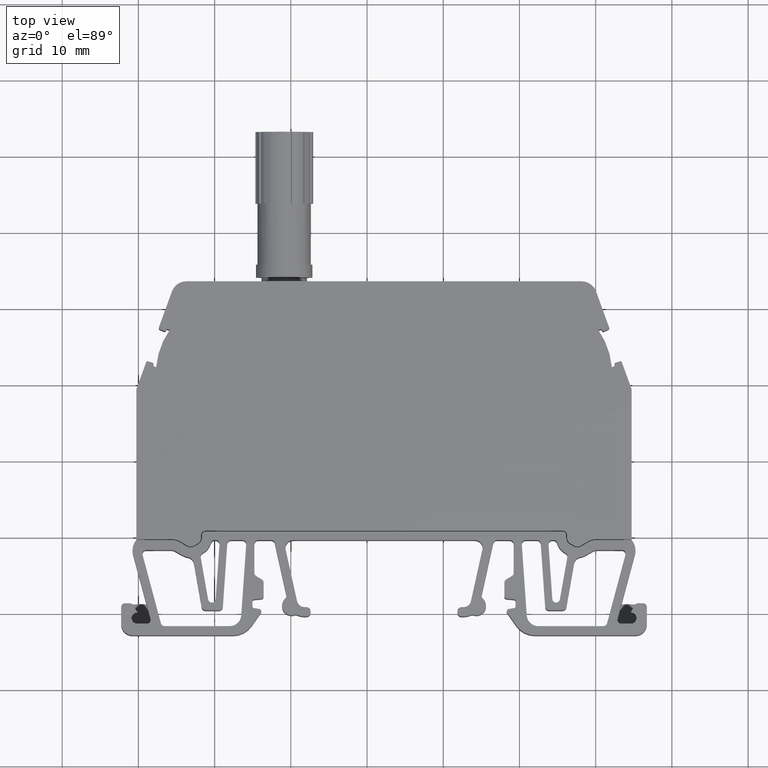
[diagram: clean part render]
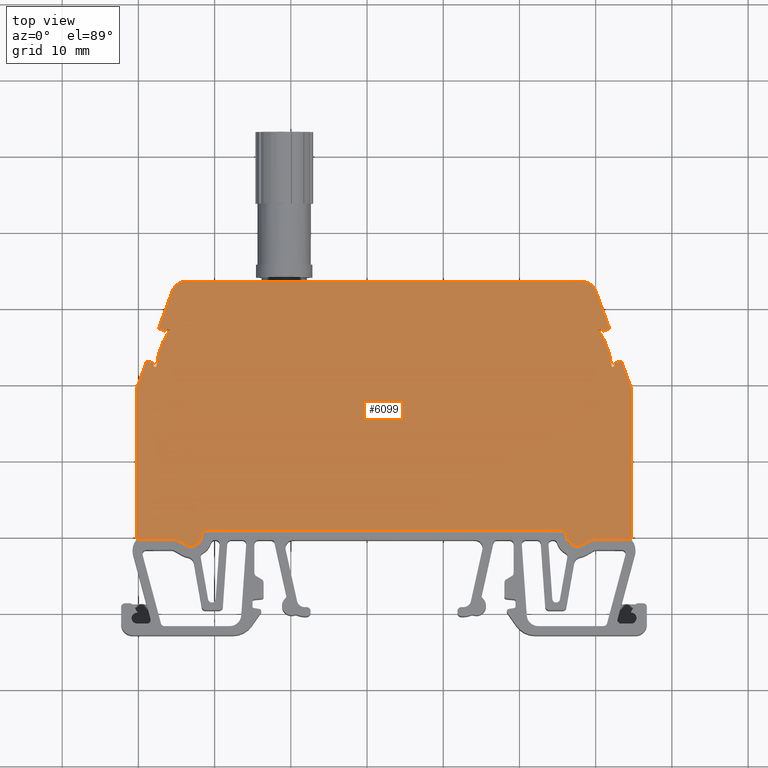
[diagram: same view with one face highlighted and labeled with its STEP entity id]
A machine part, top view. The second image highlights one B-rep face of the part: STEP entity #6099.
In plain terms, the highlighted planar face has unit normal (0, 0, 1).
Its self-contained STEP definition (entity closure, byte-faithful):
#1231 = VECTOR ( 'NONE', #11389, 1000.000000000000000 ) ;
#1234 = VECTOR ( 'NONE', #11444, 1000.000000000000100 ) ;
#1241 = CIRCLE ( 'NONE', #1242, 0.1500000000000945000 ) ;
#1242 = AXIS2_PLACEMENT_3D ( 'NONE', #11400, #11406, #11407 ) ;
#1252 = VECTOR ( 'NONE', #11384, 1000.000000000000200 ) ;
#1256 = CIRCLE ( 'NONE', #1261, 2.000000000000057300 ) ;
#1258 = VECTOR ( 'NONE', #11416, 1000.000000000000100 ) ;
#1259 = VECTOR ( 'NONE', #11447, 1000.000000000000000 ) ;
#1261 = AXIS2_PLACEMENT_3D ( 'NONE', #11434, #11443, #11435 ) ;
#1268 = VECTOR ( 'NONE', #11337, 1000.000000000000000 ) ;
#1272 = VECTOR ( 'NONE', #11403, 1000.000000000000100 ) ;
#1278 = VECTOR ( 'NONE', #11458, 1000.000000000000100 ) ;
#2169 = CIRCLE ( 'NONE', #2178, 0.1999999999999779700 ) ;
#2178 = AXIS2_PLACEMENT_3D ( 'NONE', #15309, #15326, #15314 ) ;
#2559 = CARTESIAN_POINT ( 'NONE',  ( 448.0263305940792400, 109.3124946681346800, 35.90000000000000600 ) ) ;
#2749 = VECTOR ( 'NONE', #4331, 1000.000000000000000 ) ;
#2763 = AXIS2_PLACEMENT_3D ( 'NONE', #4247, #4237, #4228 ) ;
#2784 = VECTOR ( 'NONE', #4264, 1000.000000000000000 ) ;
#2801 = VECTOR ( 'NONE', #4217, 1000.000000000000000 ) ;
#2823 = CIRCLE ( 'NONE', #2763, 2.100000000000323800 ) ;
#2836 = VECTOR ( 'NONE', #4405, 1000.000000000000000 ) ;
#2857 = VECTOR ( 'NONE', #3525, 1000.000000000000100 ) ;
#2884 = CIRCLE ( 'NONE', #2886, 0.1499999999999834800 ) ;
#2886 = AXIS2_PLACEMENT_3D ( 'NONE', #3495, #3497, #3487 ) ;
#2894 = VECTOR ( 'NONE', #19260, 1000.000000000000100 ) ;
#2899 = AXIS2_PLACEMENT_3D ( 'NONE', #10666, #10668, #10660 ) ;
#2903 = CIRCLE ( 'NONE', #2912, 2.100000000000656900 ) ;
#2912 = AXIS2_PLACEMENT_3D ( 'NONE', #19233, #19209, #19212 ) ;
#2930 = VECTOR ( 'NONE', #19914, 1000.000000000000000 ) ;
#2932 = VECTOR ( 'NONE', #19229, 1000.000000000000000 ) ;
#2935 = CIRCLE ( 'NONE', #2942, 1.499999999999945800 ) ;
#2939 = CIRCLE ( 'NONE', #2899, 0.1999999999999779700 ) ;
#2942 = AXIS2_PLACEMENT_3D ( 'NONE', #21774, #9299, #8031 ) ;
#2950 = VECTOR ( 'NONE', #19841, 1000.000000000000000 ) ;
#2974 = VECTOR ( 'NONE', #11345, 1000.000000000000100 ) ;
#2976 = AXIS2_PLACEMENT_3D ( 'NONE', #11350, #11334, #11349 ) ;
#2979 = CIRCLE ( 'NONE', #3047, 1.999999999999724200 ) ;
#2982 = CIRCLE ( 'NONE', #2976, 0.1999999999999779700 ) ;
#2985 = VECTOR ( 'NONE', #11360, 1000.000000000000000 ) ;
#2989 = CIRCLE ( 'NONE', #3035, 1.499999999999890300 ) ;
#2990 = AXIS2_PLACEMENT_3D ( 'NONE', #11310, #11316, #11322 ) ;
#2992 = AXIS2_PLACEMENT_3D ( 'NONE', #11369, #11344, #11372 ) ;
#2999 = CIRCLE ( 'NONE', #2990, 0.1999999999997559300 ) ;
#3005 = VECTOR ( 'NONE', #11295, 999.9999999999998900 ) ;
#3007 = VECTOR ( 'NONE', #11307, 1000.000000000000100 ) ;
#3014 = VECTOR ( 'NONE', #11312, 1000.000000000000000 ) ;
#3023 = CIRCLE ( 'NONE', #3044, 0.1499999999997614400 ) ;
#3027 = VECTOR ( 'NONE', #11285, 1000.000000000000100 ) ;
#3030 = VECTOR ( 'NONE', #11266, 1000.000000000000000 ) ;
#3035 = AXIS2_PLACEMENT_3D ( 'NONE', #11269, #11275, #11260 ) ;
#3037 = VECTOR ( 'NONE', #11248, 1000.000000000000100 ) ;
#3039 = CIRCLE ( 'NONE', #3041, 10.00000000000045300 ) ;
#3041 = AXIS2_PLACEMENT_3D ( 'NONE', #11308, #11296, #11292 ) ;
#3044 = AXIS2_PLACEMENT_3D ( 'NONE', #11327, #11290, #11299 ) ;
#3047 = AXIS2_PLACEMENT_3D ( 'NONE', #11361, #11340, #11364 ) ;
#3048 = CIRCLE ( 'NONE', #3065, 0.1499999999997614400 ) ;
#3052 = VECTOR ( 'NONE', #11351, 1000.000000000000100 ) ;
#3056 = VECTOR ( 'NONE', #11357, 1000.000000000000200 ) ;
#3058 = AXIS2_PLACEMENT_3D ( 'NONE', #11333, #11363, #11371 ) ;
#3060 = CIRCLE ( 'NONE', #2992, 0.2000000000001445100 ) ;
#3061 = VECTOR ( 'NONE', #11335, 1000.000000000000200 ) ;
#3065 = AXIS2_PLACEMENT_3D ( 'NONE', #11264, #11277, #11255 ) ;
#3067 = CIRCLE ( 'NONE', #3058, 10.00000000000000900 ) ;
#3276 = CARTESIAN_POINT ( 'NONE',  ( 447.9114824993305900, 109.1976465733860000, 35.89999999999999900 ) ) ;
#3487 = DIRECTION ( 'NONE',  ( 1.000000000000000000, -1.850371707708798000E-013, 0.0000000000000000000 ) ) ;
#3491 = CARTESIAN_POINT ( 'NONE',  ( 448.2439710783148700, 110.3477804724449700, 35.90000000000000600 ) ) ;
#3493 = CARTESIAN_POINT ( 'NONE',  ( 447.7754475470129600, 109.1191067570462300, 35.89999999999999900 ) ) ;
#3495 = CARTESIAN_POINT ( 'NONE',  ( 442.1032132779684500, 132.5112260477452000, 35.89999999999999900 ) ) ;
#3497 = DIRECTION ( 'NONE',  ( -0.0000000000000000000, -0.0000000000000000000, -1.000000000000000000 ) ) ;
#3502 = CARTESIAN_POINT ( 'NONE',  ( 448.2255151545261900, 110.2368191538287600, 35.89999999999999900 ) ) ;
#3504 = CARTESIAN_POINT ( 'NONE',  ( 448.2308317375813000, 110.2930991717582000, 35.89999999999999900 ) ) ;
#3508 = CARTESIAN_POINT ( 'NONE',  ( 448.2544690293987600, 110.3838794024043800, 35.89999999999999900 ) ) ;
#3516 = LINE ( 'NONE', #3517, #2857 ) ;
#3517 = CARTESIAN_POINT ( 'NONE',  ( 461.3182661428159600, 87.64050141406870900, 35.90000000000002700 ) ) ;
#3525 = DIRECTION ( 'NONE',  ( -0.8660242921353220600, -0.5000019254278069700, -0.0000000000000000000 ) ) ;
#3529 = CARTESIAN_POINT ( 'NONE',  ( 448.2254475470130000, 110.1985886008790100, 35.89999999999999900 ) ) ;
#3907 = LINE ( 'NONE', #4135, #2801 ) ;
#4135 = CARTESIAN_POINT ( 'NONE',  ( 496.2249713185750000, 68.74921847754480100, 35.89999999999999900 ) ) ;
#4217 = DIRECTION ( 'NONE',  ( 0.0000000000000000000, 1.000000000000000000, -0.0000000000000000000 ) ) ;
#4228 = DIRECTION ( 'NONE',  ( 1.000000000000000000, -9.251858538541544100E-014, 0.0000000000000000000 ) ) ;
#4230 = LINE ( 'NONE', #4257, #2784 ) ;
#4237 = DIRECTION ( 'NONE',  ( -0.0000000000000000000, -0.0000000000000000000, -1.000000000000000000 ) ) ;
#4247 = CARTESIAN_POINT ( 'NONE',  ( 500.0710872746320200, 107.5896937618599900, 35.89999999999999900 ) ) ;
#4257 = CARTESIAN_POINT ( 'NONE',  ( 472.5752094327940000, 109.6896937618602000, 35.89999999999999900 ) ) ;
#4264 = DIRECTION ( 'NONE',  ( 1.000000000000000000, 0.0000000000000000000, -0.0000000000000000000 ) ) ;
#4330 = LINE ( 'NONE', #4360, #2749 ) ;
#4331 = DIRECTION ( 'NONE',  ( -0.8660241491388746000, 0.5000021731035658700, -0.0000000000000000000 ) ) ;
#4332 = CARTESIAN_POINT ( 'NONE',  ( 495.8182950624599800, 109.6137082165654000, 35.90000000000002700 ) ) ;
#4360 = CARTESIAN_POINT ( 'NONE',  ( 483.1321519000960100, 87.64048751207990100, 35.89999999999999900 ) ) ;
#4374 = LINE ( 'NONE', #4375, #2836 ) ;
#4375 = CARTESIAN_POINT ( 'NONE',  ( 504.7252093648909900, 68.74921847754480100, 35.89999999999999900 ) ) ;
#4381 = LINE ( 'NONE', #4332, #2930 ) ;
#4405 = DIRECTION ( 'NONE',  ( -0.0000000000000000000, -1.000000000000000000, -0.0000000000000000000 ) ) ;
#5579 = EDGE_LOOP ( 'NONE', ( #9651, #9737, #9662, #9646, #9694, #9738, #9706, #9674, #9690, #9704, #9673, #9652, #9684, #9746, #9695, #9681, #9721, #9702, #9700, #9660, #9752, #9691, #9759, #9664, #9710, #9676, #9767, #9734, #9712, #9762, #9769, #9731, #9739, #9703, #9671, #9688, #9665, #9832, #9802, #9772, #9754, #9758, #9803, #9822, #9733, #9741, #9742, #9816, #9821, #9761, #9776, #9747, #9766, #9714, #9723, #9811, #9719 ) ) ;
#6099 = ADVANCED_FACE ( 'NONE', ( #18221 ), #18220, .T. ) ;
#6932 = EDGE_CURVE ( 'NONE', #8991, #8967, #2823, .T. ) ;
#6937 = EDGE_CURVE ( 'NONE', #8967, #8898, #4230, .T. ) ;
#6957 = EDGE_CURVE ( 'NONE', #8945, #8947, #4330, .T. ) ;
#6979 = EDGE_CURVE ( 'NONE', #8933, #8898, #4374, .T. ) ;
#6984 = EDGE_CURVE ( 'NONE', #8923, #8921, #3907, .T. ) ;
#6988 = EDGE_CURVE ( 'NONE', #8988, #8994, #19250, .T. ) ;
#6991 = EDGE_CURVE ( 'NONE', #8909, #8923, #21469, .T. ) ;
#7004 = EDGE_CURVE ( 'NONE', #8994, #8945, #21501, .T. ) ;
#7006 = EDGE_CURVE ( 'NONE', #8973, #8947, #2903, .T. ) ;
#7009 = EDGE_CURVE ( 'NONE', #8991, #8995, #3516, .T. ) ;
#7015 = EDGE_CURVE ( 'NONE', #8270, #8261, #2884, .T. ) ;
#7021 = EDGE_CURVE ( 'NONE', #8906, #8951, #21463, .T. ) ;
#7022 = EDGE_CURVE ( 'NONE', #9288, #8958, #2939, .T. ) ;
#7026 = EDGE_CURVE ( 'NONE', #8995, #8925, #21443, .T. ) ;
#7028 = EDGE_CURVE ( 'NONE', #8965, #8921, #21480, .T. ) ;
#7031 = EDGE_CURVE ( 'NONE', #8925, #8909, #4381, .T. ) ;
#7032 = EDGE_CURVE ( 'NONE', #8906, #8962, #18954, .T. ) ;
#7034 = EDGE_CURVE ( 'NONE', #8971, #8983, #20324, .T. ) ;
#7036 = EDGE_CURVE ( 'NONE', #8962, #8988, #21472, .T. ) ;
#7037 = EDGE_CURVE ( 'NONE', #8933, #8949, #2935, .T. ) ;
#7042 = EDGE_CURVE ( 'NONE', #8951, #8965, #11276, .T. ) ;
#7043 = EDGE_CURVE ( 'NONE', #8963, #9001, #11271, .T. ) ;
#7048 = EDGE_CURVE ( 'NONE', #8985, #8214, #2989, .T. ) ;
#7050 = EDGE_CURVE ( 'NONE', #8961, #8191, #3048, .T. ) ;
#7053 = EDGE_CURVE ( 'NONE', #9324, #8261, #11273, .T. ) ;
#7054 = EDGE_CURVE ( 'NONE', #8940, #8954, #11250, .T. ) ;
#7057 = EDGE_CURVE ( 'NONE', #8953, #9001, #2999, .T. ) ;
#7058 = EDGE_CURVE ( 'NONE', #8992, #8971, #21464, .T. ) ;
#7061 = EDGE_CURVE ( 'NONE', #8214, #8242, #11330, .T. ) ;
#7062 = EDGE_CURVE ( 'NONE', #8953, #8949, #11246, .T. ) ;
#7063 = EDGE_CURVE ( 'NONE', #8940, #8996, #3039, .T. ) ;
#7066 = EDGE_CURVE ( 'NONE', #8954, #8983, #3023, .T. ) ;
#7068 = EDGE_CURVE ( 'NONE', #8950, #9325, #21454, .T. ) ;
#7069 = EDGE_CURVE ( 'NONE', #8944, #8972, #2979, .T. ) ;
#7070 = EDGE_CURVE ( 'NONE', #8984, #9000, #11359, .T. ) ;
#7072 = EDGE_CURVE ( 'NONE', #8234, #8242, #2982, .T. ) ;
#7073 = EDGE_CURVE ( 'NONE', #8191, #8240, #11354, .T. ) ;
#7074 = EDGE_CURVE ( 'NONE', #9312, #8916, #11343, .T. ) ;
#7075 = EDGE_CURVE ( 'NONE', #8982, #8240, #3067, .T. ) ;
#7076 = EDGE_CURVE ( 'NONE', #9308, #8992, #11352, .T. ) ;
#7077 = EDGE_CURVE ( 'NONE', #8984, #8970, #3060, .T. ) ;
#7079 = EDGE_CURVE ( 'NONE', #8946, #8996, #11370, .T. ) ;
#7081 = EDGE_CURVE ( 'NONE', #8174, #8973, #11376, .T. ) ;
#7082 = EDGE_CURVE ( 'NONE', #8961, #8948, #11338, .T. ) ;
#7084 = EDGE_CURVE ( 'NONE', #8948, #8942, #21465, .T. ) ;
#7086 = EDGE_CURVE ( 'NONE', #8174, #8985, #11380, .T. ) ;
#7087 = EDGE_CURVE ( 'NONE', #8972, #8958, #11412, .T. ) ;
#7089 = EDGE_CURVE ( 'NONE', #8982, #8270, #11404, .T. ) ;
#7093 = EDGE_CURVE ( 'NONE', #9286, #8946, #1241, .T. ) ;
#7094 = EDGE_CURVE ( 'NONE', #8916, #8963, #21446, .T. ) ;
#7101 = EDGE_CURVE ( 'NONE', #8234, #8950, #11457, .T. ) ;
#7104 = EDGE_CURVE ( 'NONE', #9000, #9002, #1256, .T. ) ;
#7105 = EDGE_CURVE ( 'NONE', #9002, #8944, #11460, .T. ) ;
#7107 = EDGE_CURVE ( 'NONE', #8942, #8970, #11430, .T. ) ;
#7885 = EDGE_CURVE ( 'NONE', #9325, #9324, #21734, .T. ) ;
#7921 = EDGE_CURVE ( 'NONE', #9312, #9286, #21731, .T. ) ;
#7924 = EDGE_CURVE ( 'NONE', #9308, #9288, #2169, .T. ) ;
#8031 = DIRECTION ( 'NONE',  ( 1.000000000000000000, 0.0000000000000000000, 0.0000000000000000000 ) ) ;
#8174 = VERTEX_POINT ( 'NONE', #11980 ) ;
#8191 = VERTEX_POINT ( 'NONE', #12087 ) ;
#8214 = VERTEX_POINT ( 'NONE', #12051 ) ;
#8234 = VERTEX_POINT ( 'NONE', #12092 ) ;
#8240 = VERTEX_POINT ( 'NONE', #12018 ) ;
#8242 = VERTEX_POINT ( 'NONE', #12102 ) ;
#8261 = VERTEX_POINT ( 'NONE', #12278 ) ;
#8270 = VERTEX_POINT ( 'NONE', #12207 ) ;
#8898 = VERTEX_POINT ( 'NONE', #13827 ) ;
#8906 = VERTEX_POINT ( 'NONE', #13803 ) ;
#8909 = VERTEX_POINT ( 'NONE', #13816 ) ;
#8916 = VERTEX_POINT ( 'NONE', #13855 ) ;
#8921 = VERTEX_POINT ( 'NONE', #13934 ) ;
#8923 = VERTEX_POINT ( 'NONE', #13808 ) ;
#8925 = VERTEX_POINT ( 'NONE', #13852 ) ;
#8933 = VERTEX_POINT ( 'NONE', #13868 ) ;
#8940 = VERTEX_POINT ( 'NONE', #13884 ) ;
#8942 = VERTEX_POINT ( 'NONE', #13887 ) ;
#8944 = VERTEX_POINT ( 'NONE', #13890 ) ;
#8945 = VERTEX_POINT ( 'NONE', #13921 ) ;
#8946 = VERTEX_POINT ( 'NONE', #13899 ) ;
#8947 = VERTEX_POINT ( 'NONE', #13902 ) ;
#8948 = VERTEX_POINT ( 'NONE', #13905 ) ;
#8949 = VERTEX_POINT ( 'NONE', #13915 ) ;
#8950 = VERTEX_POINT ( 'NONE', #14058 ) ;
#8951 = VERTEX_POINT ( 'NONE', #14075 ) ;
#8953 = VERTEX_POINT ( 'NONE', #13998 ) ;
#8954 = VERTEX_POINT ( 'NONE', #14027 ) ;
#8958 = VERTEX_POINT ( 'NONE', #14093 ) ;
#8961 = VERTEX_POINT ( 'NONE', #13971 ) ;
#8962 = VERTEX_POINT ( 'NONE', #14002 ) ;
#8963 = VERTEX_POINT ( 'NONE', #14042 ) ;
#8965 = VERTEX_POINT ( 'NONE', #14011 ) ;
#8967 = VERTEX_POINT ( 'NONE', #14095 ) ;
#8970 = VERTEX_POINT ( 'NONE', #14028 ) ;
#8971 = VERTEX_POINT ( 'NONE', #13990 ) ;
#8972 = VERTEX_POINT ( 'NONE', #14081 ) ;
#8973 = VERTEX_POINT ( 'NONE', #14079 ) ;
#8982 = VERTEX_POINT ( 'NONE', #14052 ) ;
#8983 = VERTEX_POINT ( 'NONE', #14099 ) ;
#8984 = VERTEX_POINT ( 'NONE', #14067 ) ;
#8985 = VERTEX_POINT ( 'NONE', #14054 ) ;
#8988 = VERTEX_POINT ( 'NONE', #14073 ) ;
#8991 = VERTEX_POINT ( 'NONE', #14008 ) ;
#8992 = VERTEX_POINT ( 'NONE', #14085 ) ;
#8994 = VERTEX_POINT ( 'NONE', #13995 ) ;
#8995 = VERTEX_POINT ( 'NONE', #14026 ) ;
#8996 = VERTEX_POINT ( 'NONE', #14089 ) ;
#9000 = VERTEX_POINT ( 'NONE', #14069 ) ;
#9001 = VERTEX_POINT ( 'NONE', #14065 ) ;
#9002 = VERTEX_POINT ( 'NONE', #14030 ) ;
#9286 = VERTEX_POINT ( 'NONE', #14148 ) ;
#9288 = VERTEX_POINT ( 'NONE', #14071 ) ;
#9299 = DIRECTION ( 'NONE',  ( 0.0000000000000000000, 0.0000000000000000000, 1.000000000000000000 ) ) ;
#9306 = CARTESIAN_POINT ( 'NONE',  ( 448.2254475470130000, 109.8985296204523900, 35.89999999999999900 ) ) ;
#9308 = VERTEX_POINT ( 'NONE', #14108 ) ;
#9312 = VERTEX_POINT ( 'NONE', #14127 ) ;
#9324 = VERTEX_POINT ( 'NONE', #14209 ) ;
#9325 = VERTEX_POINT ( 'NONE', #14175 ) ;
#9646 = ORIENTED_EDGE ( 'NONE', *, *, #7062, .F. ) ;
#9651 = ORIENTED_EDGE ( 'NONE', *, *, #6937, .T. ) ;
#9652 = ORIENTED_EDGE ( 'NONE', *, *, #7063, .F. ) ;
#9660 = ORIENTED_EDGE ( 'NONE', *, *, #7087, .F. ) ;
#9662 = ORIENTED_EDGE ( 'NONE', *, *, #7037, .T. ) ;
#9664 = ORIENTED_EDGE ( 'NONE', *, *, #7070, .F. ) ;
#9665 = ORIENTED_EDGE ( 'NONE', *, *, #7101, .F. ) ;
#9671 = ORIENTED_EDGE ( 'NONE', *, *, #7885, .F. ) ;
#9673 = ORIENTED_EDGE ( 'NONE', *, *, #7079, .T. ) ;
#9674 = ORIENTED_EDGE ( 'NONE', *, *, #7074, .F. ) ;
#9676 = ORIENTED_EDGE ( 'NONE', *, *, #7107, .F. ) ;
#9681 = ORIENTED_EDGE ( 'NONE', *, *, #7058, .F. ) ;
#9684 = ORIENTED_EDGE ( 'NONE', *, *, #7054, .T. ) ;
#9688 = ORIENTED_EDGE ( 'NONE', *, *, #7068, .F. ) ;
#9690 = ORIENTED_EDGE ( 'NONE', *, *, #7921, .T. ) ;
#9691 = ORIENTED_EDGE ( 'NONE', *, *, #7105, .F. ) ;
#9694 = ORIENTED_EDGE ( 'NONE', *, *, #7057, .T. ) ;
#9695 = ORIENTED_EDGE ( 'NONE', *, *, #7034, .F. ) ;
#9700 = ORIENTED_EDGE ( 'NONE', *, *, #7022, .T. ) ;
#9702 = ORIENTED_EDGE ( 'NONE', *, *, #7924, .T. ) ;
#9703 = ORIENTED_EDGE ( 'NONE', *, *, #7053, .F. ) ;
#9704 = ORIENTED_EDGE ( 'NONE', *, *, #7093, .T. ) ;
#9706 = ORIENTED_EDGE ( 'NONE', *, *, #7094, .F. ) ;
#9710 = ORIENTED_EDGE ( 'NONE', *, *, #7077, .T. ) ;
#9712 = ORIENTED_EDGE ( 'NONE', *, *, #7050, .T. ) ;
#9714 = ORIENTED_EDGE ( 'NONE', *, *, #7031, .F. ) ;
#9719 = ORIENTED_EDGE ( 'NONE', *, *, #6932, .T. ) ;
#9721 = ORIENTED_EDGE ( 'NONE', *, *, #7076, .F. ) ;
#9723 = ORIENTED_EDGE ( 'NONE', *, *, #7026, .F. ) ;
#9731 = ORIENTED_EDGE ( 'NONE', *, *, #7089, .T. ) ;
#9733 = ORIENTED_EDGE ( 'NONE', *, *, #7004, .F. ) ;
#9734 = ORIENTED_EDGE ( 'NONE', *, *, #7082, .F. ) ;
#9737 = ORIENTED_EDGE ( 'NONE', *, *, #6979, .F. ) ;
#9738 = ORIENTED_EDGE ( 'NONE', *, *, #7043, .F. ) ;
#9739 = ORIENTED_EDGE ( 'NONE', *, *, #7015, .T. ) ;
#9741 = ORIENTED_EDGE ( 'NONE', *, *, #6988, .F. ) ;
#9742 = ORIENTED_EDGE ( 'NONE', *, *, #7036, .F. ) ;
#9746 = ORIENTED_EDGE ( 'NONE', *, *, #7066, .T. ) ;
#9747 = ORIENTED_EDGE ( 'NONE', *, *, #6984, .F. ) ;
#9752 = ORIENTED_EDGE ( 'NONE', *, *, #7069, .F. ) ;
#9754 = ORIENTED_EDGE ( 'NONE', *, *, #7086, .F. ) ;
#9758 = ORIENTED_EDGE ( 'NONE', *, *, #7081, .T. ) ;
#9759 = ORIENTED_EDGE ( 'NONE', *, *, #7104, .F. ) ;
#9761 = ORIENTED_EDGE ( 'NONE', *, *, #7042, .T. ) ;
#9762 = ORIENTED_EDGE ( 'NONE', *, *, #7073, .T. ) ;
#9766 = ORIENTED_EDGE ( 'NONE', *, *, #6991, .F. ) ;
#9767 = ORIENTED_EDGE ( 'NONE', *, *, #7084, .F. ) ;
#9769 = ORIENTED_EDGE ( 'NONE', *, *, #7075, .F. ) ;
#9772 = ORIENTED_EDGE ( 'NONE', *, *, #7048, .F. ) ;
#9776 = ORIENTED_EDGE ( 'NONE', *, *, #7028, .T. ) ;
#9802 = ORIENTED_EDGE ( 'NONE', *, *, #7061, .F. ) ;
#9803 = ORIENTED_EDGE ( 'NONE', *, *, #7006, .T. ) ;
#9811 = ORIENTED_EDGE ( 'NONE', *, *, #7009, .F. ) ;
#9816 = ORIENTED_EDGE ( 'NONE', *, *, #7032, .F. ) ;
#9821 = ORIENTED_EDGE ( 'NONE', *, *, #7021, .T. ) ;
#9822 = ORIENTED_EDGE ( 'NONE', *, *, #6957, .F. ) ;
#9832 = ORIENTED_EDGE ( 'NONE', *, *, #7072, .T. ) ;
#10660 = DIRECTION ( 'NONE',  ( 1.000000000000000000, 0.0000000000000000000, 0.0000000000000000000 ) ) ;
#10661 = CARTESIAN_POINT ( 'NONE',  ( 448.2254475470130600, 109.7414499877728700, 35.90000000000000600 ) ) ;
#10664 = CARTESIAN_POINT ( 'NONE',  ( 448.1834102267588400, 109.5845645727699300, 35.89999999999999900 ) ) ;
#10665 = CARTESIAN_POINT ( 'NONE',  ( 497.7546262631257700, 108.7256913108222400, 35.89999999999999900 ) ) ;
#10666 = CARTESIAN_POINT ( 'NONE',  ( 501.5735559405449600, 137.4437300253040300, 35.89999999999999900 ) ) ;
#10667 = CARTESIAN_POINT ( 'NONE',  ( 497.9115124484664500, 108.7677296678694200, 35.90000000000000600 ) ) ;
#10668 = DIRECTION ( 'NONE',  ( 0.0000000000000000000, 0.0000000000000000000, 1.000000000000000000 ) ) ;
#10669 = CARTESIAN_POINT ( 'NONE',  ( 448.6750108821947300, 110.7844104154181500, 35.89999999999999100 ) ) ;
#10670 = CARTESIAN_POINT ( 'NONE',  ( 448.5302401698308500, 110.7214445714077200, 35.89999999999999100 ) ) ;
#10671 = CARTESIAN_POINT ( 'NONE',  ( 448.7486298241073000, 110.7984527552055700, 35.89999999999999100 ) ) ;
#10677 = CARTESIAN_POINT ( 'NONE',  ( 498.0475476637526500, 108.8462708581680000, 35.90000000000002700 ) ) ;
#10679 = CARTESIAN_POINT ( 'NONE',  ( 448.8254475470134800, 110.7985886008789900, 35.89999999999999900 ) ) ;
#10680 = CARTESIAN_POINT ( 'NONE',  ( 448.5869856810466600, 110.7494743730412500, 35.89999999999999900 ) ) ;
#10681 = CARTESIAN_POINT ( 'NONE',  ( 448.5665225177643300, 110.7402511619893900, 35.89999999999999900 ) ) ;
#10683 = CARTESIAN_POINT ( 'NONE',  ( 448.2978729756086400, 110.4961704664837000, 35.89999999999999900 ) ) ;
#10684 = CARTESIAN_POINT ( 'NONE',  ( 448.3429056270603000, 110.5644701199922400, 35.89999999999999100 ) ) ;
#10685 = CARTESIAN_POINT ( 'NONE',  ( 448.2599999640672800, 110.4002641666493400, 35.89999999999999100 ) ) ;
#10686 = CARTESIAN_POINT ( 'NONE',  ( 448.4303224039217600, 110.6520439443905400, 35.89999999999999900 ) ) ;
#10687 = CARTESIAN_POINT ( 'NONE',  ( 448.4776025035087600, 110.6906385144807400, 35.89999999999999900 ) ) ;
#11246 = LINE ( 'NONE', #11320, #3007 ) ;
#11247 = CARTESIAN_POINT ( 'NONE',  ( 456.5695839940340200, 118.3402177864010000, 35.89999999999999900 ) ) ;
#11248 = DIRECTION ( 'NONE',  ( -0.3420201433215586100, -0.9396926207874043400, -0.0000000000000000000 ) ) ;
#11250 = LINE ( 'NONE', #11282, #3005 ) ;
#11255 = DIRECTION ( 'NONE',  ( 1.000000000000000000, -1.850371707711537200E-013, 0.0000000000000000000 ) ) ;
#11260 = DIRECTION ( 'NONE',  ( 1.000000000000000000, -1.110223024625237700E-013, 0.0000000000000000000 ) ) ;
#11264 = CARTESIAN_POINT ( 'NONE',  ( 443.7831173541765100, 137.1267245639772100, 35.89999999999999900 ) ) ;
#11266 = DIRECTION ( 'NONE',  ( 1.000000000000000000, 0.0000000000000000000, -0.0000000000000000000 ) ) ;
#11269 = CARTESIAN_POINT ( 'NONE',  ( 441.2252095006970200, 129.1050823633559900, 35.89999999999999900 ) ) ;
#11271 = LINE ( 'NONE', #11247, #3027 ) ;
#11272 = CARTESIAN_POINT ( 'NONE',  ( 472.5752094327940000, 110.7985886008790000, 35.89999999999999900 ) ) ;
#11273 = LINE ( 'NONE', #11281, #3037 ) ;
#11275 = DIRECTION ( 'NONE',  ( -0.0000000000000000000, -0.0000000000000000000, -1.000000000000000000 ) ) ;
#11276 = LINE ( 'NONE', #11272, #3030 ) ;
#11277 = DIRECTION ( 'NONE',  ( -0.0000000000000000000, -0.0000000000000000000, -1.000000000000000000 ) ) ;
#11281 = CARTESIAN_POINT ( 'NONE',  ( 424.9770796696905100, 85.89613133582749100, 35.89999999999999900 ) ) ;
#11282 = CARTESIAN_POINT ( 'NONE',  ( 500.3413740903850500, 137.1677233500632000, 35.89999999999999900 ) ) ;
#11285 = DIRECTION ( 'NONE',  ( 0.9536955789618815100, 0.3007735737536818000, -0.0000000000000000000 ) ) ;
#11290 = DIRECTION ( 'NONE',  ( -0.0000000000000000000, -0.0000000000000000000, -1.000000000000000000 ) ) ;
#11291 = CARTESIAN_POINT ( 'NONE',  ( 441.8457076652765100, 132.8586343896418200, 35.90000000000002000 ) ) ;
#11292 = DIRECTION ( 'NONE',  ( 1.000000000000000000, -8.326672684688297000E-015, 0.0000000000000000000 ) ) ;
#11293 = CARTESIAN_POINT ( 'NONE',  ( 441.8863333666203600, 132.8458219811026900, 35.90000000000000600 ) ) ;
#11295 = DIRECTION ( 'NONE',  ( 0.9396926207850649900, 0.3420201433279862500, 0.0000000000000000000 ) ) ;
#11296 = DIRECTION ( 'NONE',  ( -0.0000000000000000000, -0.0000000000000000000, -1.000000000000000000 ) ) ;
#11299 = DIRECTION ( 'NONE',  ( 1.000000000000000000, 3.700743415423074400E-013, 0.0000000000000000000 ) ) ;
#11300 = CARTESIAN_POINT ( 'NONE',  ( 441.9226699599071800, 132.8197806153214100, 35.89999999999999900 ) ) ;
#11302 = CARTESIAN_POINT ( 'NONE',  ( 500.9790030030149000, 137.0059046612581700, 35.89999999999999900 ) ) ;
#11304 = CARTESIAN_POINT ( 'NONE',  ( 500.8393757653099100, 137.0925250969406200, 35.89999999999999900 ) ) ;
#11307 = DIRECTION ( 'NONE',  ( 0.3420269741746871400, -0.9396901345320742800, -0.0000000000000000000 ) ) ;
#11308 = CARTESIAN_POINT ( 'NONE',  ( 492.1603597595449700, 131.4169838742566000, 35.89999999999999900 ) ) ;
#11310 = CARTESIAN_POINT ( 'NONE',  ( 503.2452360279839900, 132.8509306121840400, 35.89999999999999900 ) ) ;
#11312 = DIRECTION ( 'NONE',  ( 0.3420269741745310400, 0.9396901345321311300, -0.0000000000000000000 ) ) ;
#11316 = DIRECTION ( 'NONE',  ( 0.0000000000000000000, 0.0000000000000000000, 1.000000000000000000 ) ) ;
#11318 = CARTESIAN_POINT ( 'NONE',  ( 500.8795011677384000, 137.0496844043561300, 35.90000000000000600 ) ) ;
#11320 = CARTESIAN_POINT ( 'NONE',  ( 520.4226953928010700, 86.24206550757861600, 35.90000000000002700 ) ) ;
#11321 = CARTESIAN_POINT ( 'NONE',  ( 500.8207857189568100, 137.1436008295235400, 35.89999999999999900 ) ) ;
#11322 = DIRECTION ( 'NONE',  ( 1.000000000000000000, 0.0000000000000000000, 0.0000000000000000000 ) ) ;
#11325 = CARTESIAN_POINT ( 'NONE',  ( 424.0277234727914800, 86.24206550756802900, 35.89999999999999900 ) ) ;
#11326 = CARTESIAN_POINT ( 'NONE',  ( 501.0376968264645800, 137.0052659515774000, 35.90000000000000600 ) ) ;
#11327 = CARTESIAN_POINT ( 'NONE',  ( 500.6673015114110400, 137.1267245639772100, 35.89999999999999900 ) ) ;
#11329 = CARTESIAN_POINT ( 'NONE',  ( 501.0879123199289900, 137.0260679826899100, 35.89999999999999900 ) ) ;
#11330 = LINE ( 'NONE', #11325, #3014 ) ;
#11333 = CARTESIAN_POINT ( 'NONE',  ( 452.2900591060430300, 131.4169838742566000, 35.89999999999999900 ) ) ;
#11334 = DIRECTION ( 'NONE',  ( 0.0000000000000000000, 0.0000000000000000000, 1.000000000000000000 ) ) ;
#11335 = DIRECTION ( 'NONE',  ( -0.9396926207858459200, -0.3420201433258405200, 0.0000000000000000000 ) ) ;
#11336 = CARTESIAN_POINT ( 'NONE',  ( 472.5752094327940000, 109.6896936420171900, 35.89999999999999900 ) ) ;
#11337 = DIRECTION ( 'NONE',  ( 1.000000000000000000, 0.0000000000000000000, -0.0000000000000000000 ) ) ;
#11338 = LINE ( 'NONE', #11341, #1272 ) ;
#11340 = DIRECTION ( 'NONE',  ( -0.0000000000000000000, -0.0000000000000000000, -1.000000000000000000 ) ) ;
#11341 = CARTESIAN_POINT ( 'NONE',  ( 424.9770796704060000, 85.89613133447529900, 35.90000000000002700 ) ) ;
#11342 = CARTESIAN_POINT ( 'NONE',  ( 443.8344203756755100, 137.2676784570948000, 35.89999999999999900 ) ) ;
#11343 = LINE ( 'NONE', #11379, #3056 ) ;
#11344 = DIRECTION ( 'NONE',  ( 0.0000000000000000000, 0.0000000000000000000, 1.000000000000000000 ) ) ;
#11345 = DIRECTION ( 'NONE',  ( 0.9396926207857007100, -0.3420201433262392600, 0.0000000000000000000 ) ) ;
#11346 = CARTESIAN_POINT ( 'NONE',  ( 441.9730449549831000, 132.7510726713837500, 35.90000000000000600 ) ) ;
#11348 = CARTESIAN_POINT ( 'NONE',  ( 441.9869514033778700, 132.6659878826916100, 35.89999999999999900 ) ) ;
#11349 = DIRECTION ( 'NONE',  ( 1.000000000000000000, 0.0000000000000000000, 0.0000000000000000000 ) ) ;
#11350 = CARTESIAN_POINT ( 'NONE',  ( 441.2051828376039600, 132.8509306121840400, 35.89999999999999900 ) ) ;
#11351 = DIRECTION ( 'NONE',  ( 0.3420269741745394800, 0.9396901345321280200, -0.0000000000000000000 ) ) ;
#11352 = LINE ( 'NONE', #11367, #2985 ) ;
#11354 = LINE ( 'NONE', #11342, #2974 ) ;
#11357 = DIRECTION ( 'NONE',  ( -0.3420201433202184600, 0.9396926207878920600, -0.0000000000000000000 ) ) ;
#11359 = LINE ( 'NONE', #11377, #3052 ) ;
#11360 = DIRECTION ( 'NONE',  ( -0.9238659197143411800, -0.3827162949109620400, -0.0000000000000000000 ) ) ;
#11361 = CARTESIAN_POINT ( 'NONE',  ( 498.1671904468869900, 141.5396878145460000, 35.89999999999999900 ) ) ;
#11363 = DIRECTION ( 'NONE',  ( -0.0000000000000000000, -0.0000000000000000000, -1.000000000000000000 ) ) ;
#11364 = DIRECTION ( 'NONE',  ( 1.000000000000000000, -4.163336342344911300E-014, 0.0000000000000000000 ) ) ;
#11365 = CARTESIAN_POINT ( 'NONE',  ( 441.9869514033778700, 132.7085860683602300, 35.89999999999999900 ) ) ;
#11366 = CARTESIAN_POINT ( 'NONE',  ( 502.3985086091179300, 132.3702721546271700, 35.89999999999999900 ) ) ;
#11367 = CARTESIAN_POINT ( 'NONE',  ( 452.2938725790541000, 116.8128815182080000, 35.89999999999999900 ) ) ;
#11369 = CARTESIAN_POINT ( 'NONE',  ( 442.8768629250429900, 137.4437300253040300, 35.89999999999999900 ) ) ;
#11370 = LINE ( 'NONE', #11366, #3061 ) ;
#11371 = DIRECTION ( 'NONE',  ( 1.000000000000000000, 0.0000000000000000000, 0.0000000000000000000 ) ) ;
#11372 = DIRECTION ( 'NONE',  ( 1.000000000000000000, 0.0000000000000000000, 0.0000000000000000000 ) ) ;
#11376 = LINE ( 'NONE', #11336, #1268 ) ;
#11377 = CARTESIAN_POINT ( 'NONE',  ( 424.0277234727914800, 86.24206550756851200, 35.90000000000002700 ) ) ;
#11379 = CARTESIAN_POINT ( 'NONE',  ( 519.4733391958550300, 85.89613133573580200, 35.90000000000002700 ) ) ;
#11380 = LINE ( 'NONE', #11381, #1258 ) ;
#11381 = CARTESIAN_POINT ( 'NONE',  ( 439.7252246066084900, 68.74921035015778200, 35.90000000000002700 ) ) ;
#11383 = CARTESIAN_POINT ( 'NONE',  ( 442.3265345086064700, 132.2703171012420000, 35.89999999999999900 ) ) ;
#11384 = DIRECTION ( 'NONE',  ( -0.9396926207860015800, 0.3420201433254125300, 0.0000000000000000000 ) ) ;
#11388 = CARTESIAN_POINT ( 'NONE',  ( 443.6110431002782700, 137.0925250969405300, 35.90000000000000600 ) ) ;
#11389 = DIRECTION ( 'NONE',  ( 0.3420269741745725100, -0.9396901345321160300, -0.0000000000000000000 ) ) ;
#11394 = CARTESIAN_POINT ( 'NONE',  ( 502.4756495528110900, 132.5968998137400700, 35.90000000000000600 ) ) ;
#11395 = CARTESIAN_POINT ( 'NONE',  ( 502.4570607343199500, 132.6479721727994000, 35.90000000000000600 ) ) ;
#11396 = CARTESIAN_POINT ( 'NONE',  ( 443.4127220391234200, 137.0052659515775400, 35.89999999999999900 ) ) ;
#11399 = CARTESIAN_POINT ( 'NONE',  ( 502.5528777795055400, 132.8422873250652900, 35.89999999999999900 ) ) ;
#11400 = CARTESIAN_POINT ( 'NONE',  ( 502.3472055876189300, 132.5112260477452000, 35.89999999999999900 ) ) ;
#11401 = CARTESIAN_POINT ( 'NONE',  ( 502.6047112003120100, 132.8586343896419100, 35.89999999999999900 ) ) ;
#11403 = DIRECTION ( 'NONE',  ( -0.3420201433023855000, -0.9396926207943827600, -0.0000000000000000000 ) ) ;
#11404 = LINE ( 'NONE', #11383, #1252 ) ;
#11406 = DIRECTION ( 'NONE',  ( -0.0000000000000000000, -0.0000000000000000000, -1.000000000000000000 ) ) ;
#11407 = DIRECTION ( 'NONE',  ( 1.000000000000000000, 0.0000000000000000000, 0.0000000000000000000 ) ) ;
#11409 = CARTESIAN_POINT ( 'NONE',  ( 502.4602593050848900, 132.7065778110237800, 35.89999999999999900 ) ) ;
#11410 = CARTESIAN_POINT ( 'NONE',  ( 502.5083326829565600, 132.8040697105391800, 35.90000000000000600 ) ) ;
#11412 = LINE ( 'NONE', #11420, #1231 ) ;
#11415 = CARTESIAN_POINT ( 'NONE',  ( 443.3625065456590200, 137.0260679826900200, 35.89999999999999900 ) ) ;
#11416 = DIRECTION ( 'NONE',  ( -2.500735628346939200E-007, 0.9999999999999686900, -0.0000000000000000000 ) ) ;
#11417 = CARTESIAN_POINT ( 'NONE',  ( 443.6296331466308500, 137.1436008295234500, 35.90000000000002000 ) ) ;
#11418 = CARTESIAN_POINT ( 'NONE',  ( 443.4714158625728300, 137.0059046612582000, 35.90000000000000600 ) ) ;
#11420 = CARTESIAN_POINT ( 'NONE',  ( 520.4226953927971000, 86.24206550757070000, 35.89999999999999900 ) ) ;
#11421 = CARTESIAN_POINT ( 'NONE',  ( 443.5709176978493200, 137.0496844043561900, 35.89999999999999900 ) ) ;
#11430 = LINE ( 'NONE', #11464, #1234 ) ;
#11434 = CARTESIAN_POINT ( 'NONE',  ( 446.2832284187010700, 141.5396878145460000, 35.89999999999999900 ) ) ;
#11435 = DIRECTION ( 'NONE',  ( 1.000000000000000000, -1.387778780781405900E-014, 0.0000000000000000000 ) ) ;
#11443 = DIRECTION ( 'NONE',  ( -0.0000000000000000000, -0.0000000000000000000, -1.000000000000000000 ) ) ;
#11444 = DIRECTION ( 'NONE',  ( -0.9238659197144130100, 0.3827162949107885100, -0.0000000000000000000 ) ) ;
#11447 = DIRECTION ( 'NONE',  ( 1.000000000000000000, 0.0000000000000000000, -0.0000000000000000000 ) ) ;
#11457 = LINE ( 'NONE', #11459, #1278 ) ;
#11458 = DIRECTION ( 'NONE',  ( 0.9536955789618091200, -0.3007735737539115100, -0.0000000000000000000 ) ) ;
#11459 = CARTESIAN_POINT ( 'NONE',  ( 487.8808348715629700, 118.3402177863862100, 35.90000000000002700 ) ) ;
#11460 = LINE ( 'NONE', #11462, #1259 ) ;
#11462 = CARTESIAN_POINT ( 'NONE',  ( 472.2252094327939700, 143.5396878145460000, 35.89999999999999900 ) ) ;
#11464 = CARTESIAN_POINT ( 'NONE',  ( 492.1565462865290800, 116.8128815182209900, 35.89999999999999900 ) ) ;
#11980 = CARTESIAN_POINT ( 'NONE',  ( 439.7252127458829700, 109.6896936420171900, 35.90000000000002000 ) ) ;
#12018 = CARTESIAN_POINT ( 'NONE',  ( 444.1090447752035900, 137.1677233500631700, 35.89999999999999900 ) ) ;
#12051 = CARTESIAN_POINT ( 'NONE',  ( 439.8156742988989000, 129.6181228246177000, 35.89999999999999900 ) ) ;
#12087 = CARTESIAN_POINT ( 'NONE',  ( 443.8344203756754500, 137.2676784570948000, 35.89999999999999900 ) ) ;
#12092 = CARTESIAN_POINT ( 'NONE',  ( 441.2653375523546500, 133.0416697279764500, 35.89999999999999900 ) ) ;
#12102 = CARTESIAN_POINT ( 'NONE',  ( 441.0172448106974300, 132.9193360070189800, 35.89999999999999900 ) ) ;
#12207 = CARTESIAN_POINT ( 'NONE',  ( 442.0519102564696300, 132.3702721546273700, 35.89999999999999900 ) ) ;
#12278 = CARTESIAN_POINT ( 'NONE',  ( 441.9622593848505400, 132.5625290692437100, 35.89999999999999900 ) ) ;
#13803 = CARTESIAN_POINT ( 'NONE',  ( 448.2254475470130000, 110.1985886008790100, 35.89999999999999900 ) ) ;
#13808 = CARTESIAN_POINT ( 'NONE',  ( 496.2249713185750000, 109.8985296204523900, 35.89999999999999900 ) ) ;
#13816 = CARTESIAN_POINT ( 'NONE',  ( 496.6749713185751000, 109.1191067570462500, 35.90000000000000600 ) ) ;
#13827 = CARTESIAN_POINT ( 'NONE',  ( 504.7252093648909900, 109.6896936819648700, 35.89999999999999900 ) ) ;
#13852 = CARTESIAN_POINT ( 'NONE',  ( 497.1475429536653800, 108.8462678603528500, 35.90000000000000600 ) ) ;
#13855 = CARTESIAN_POINT ( 'NONE',  ( 502.4756495528110900, 132.5968998137400700, 35.90000000000000600 ) ) ;
#13868 = CARTESIAN_POINT ( 'NONE',  ( 504.7252093648909900, 129.1050821708110200, 35.89999999999999900 ) ) ;
#13884 = CARTESIAN_POINT ( 'NONE',  ( 500.3413740903850500, 137.1677233500630800, 35.89999999999999900 ) ) ;
#13887 = CARTESIAN_POINT ( 'NONE',  ( 443.3625065456590200, 137.0260679826900200, 35.89999999999999900 ) ) ;
#13890 = CARTESIAN_POINT ( 'NONE',  ( 498.1671904468869900, 143.5396878145460000, 35.89999999999999900 ) ) ;
#13899 = CARTESIAN_POINT ( 'NONE',  ( 502.3985086091178100, 132.3702721546272900, 35.89999999999999900 ) ) ;
#13902 = CARTESIAN_POINT ( 'NONE',  ( 445.4293354461190700, 109.4083448840228500, 35.89999999999999900 ) ) ;
#13905 = CARTESIAN_POINT ( 'NONE',  ( 443.6296331466308500, 137.1436008295234500, 35.90000000000002000 ) ) ;
#13915 = CARTESIAN_POINT ( 'NONE',  ( 504.6347445666892200, 129.6181228246179300, 35.90000000000002000 ) ) ;
#13921 = CARTESIAN_POINT ( 'NONE',  ( 446.4028713854622800, 108.8462703809187100, 35.89999999999999900 ) ) ;
#13934 = CARTESIAN_POINT ( 'NONE',  ( 496.2249713185750000, 110.1985886008790100, 35.89999999999999900 ) ) ;
#13971 = CARTESIAN_POINT ( 'NONE',  ( 443.6421634610579800, 137.1780275854737300, 35.89999999999999900 ) ) ;
#13990 = CARTESIAN_POINT ( 'NONE',  ( 500.8207857189568100, 137.1436008295235400, 35.89999999999999900 ) ) ;
#13995 = CARTESIAN_POINT ( 'NONE',  ( 447.3028760726701900, 108.8462675819307000, 35.89999999999999900 ) ) ;
#13998 = CARTESIAN_POINT ( 'NONE',  ( 503.4331740548902900, 132.9193360070189800, 35.90000000000000600 ) ) ;
#14002 = CARTESIAN_POINT ( 'NONE',  ( 448.2254475470130000, 109.8985296204523900, 35.89999999999999900 ) ) ;
#14008 = CARTESIAN_POINT ( 'NONE',  ( 499.0210836993428500, 109.4083450456086100, 35.90000000000001300 ) ) ;
#14011 = CARTESIAN_POINT ( 'NONE',  ( 495.6249713185750400, 110.7985886008789900, 35.89999999999999900 ) ) ;
#14026 = CARTESIAN_POINT ( 'NONE',  ( 498.0475476637526500, 108.8462708581680000, 35.90000000000002700 ) ) ;
#14027 = CARTESIAN_POINT ( 'NONE',  ( 500.6159984899119900, 137.2676784570948000, 35.89999999999999900 ) ) ;
#14028 = CARTESIAN_POINT ( 'NONE',  ( 442.8003196660606000, 137.2589568413610300, 35.89999999999999900 ) ) ;
#14030 = CARTESIAN_POINT ( 'NONE',  ( 446.2832284187010700, 143.5396878145460300, 35.89999999999999900 ) ) ;
#14042 = CARTESIAN_POINT ( 'NONE',  ( 502.6047112003120100, 132.8586343896419100, 35.89999999999999900 ) ) ;
#14052 = CARTESIAN_POINT ( 'NONE',  ( 442.3265345086064700, 132.2703171012420000, 35.89999999999999900 ) ) ;
#14054 = CARTESIAN_POINT ( 'NONE',  ( 439.7252095006969600, 129.1050819832558100, 35.90000000000002000 ) ) ;
#14058 = CARTESIAN_POINT ( 'NONE',  ( 441.8457076652765100, 132.8586343896418200, 35.90000000000002000 ) ) ;
#14065 = CARTESIAN_POINT ( 'NONE',  ( 503.1850813132332400, 133.0416697279760900, 35.89999999999999900 ) ) ;
#14067 = CARTESIAN_POINT ( 'NONE',  ( 442.6889248981365200, 137.5121354201390000, 35.90000000000000600 ) ) ;
#14069 = CARTESIAN_POINT ( 'NONE',  ( 444.4038481496366400, 142.2237417628950300, 35.90000000000002000 ) ) ;
#14071 = CARTESIAN_POINT ( 'NONE',  ( 501.7735559405449500, 137.4437300253040300, 35.89999999999999900 ) ) ;
#14073 = CARTESIAN_POINT ( 'NONE',  ( 447.7754475470129600, 109.1191067570462300, 35.89999999999999900 ) ) ;
#14075 = CARTESIAN_POINT ( 'NONE',  ( 448.8254475470134800, 110.7985886008789900, 35.89999999999999900 ) ) ;
#14079 = CARTESIAN_POINT ( 'NONE',  ( 444.3793315909559900, 109.6896937019388900, 35.89999999999999900 ) ) ;
#14081 = CARTESIAN_POINT ( 'NONE',  ( 500.0465707159508500, 142.2237417628949200, 35.89999999999999900 ) ) ;
#14085 = CARTESIAN_POINT ( 'NONE',  ( 501.0879123199289900, 137.0260679826899100, 35.89999999999999900 ) ) ;
#14089 = CARTESIAN_POINT ( 'NONE',  ( 502.1238843569819900, 132.2703171012420000, 35.89999999999999900 ) ) ;
#14093 = CARTESIAN_POINT ( 'NONE',  ( 501.7614939674508600, 137.5121354201388600, 35.89999999999999900 ) ) ;
#14095 = CARTESIAN_POINT ( 'NONE',  ( 500.0710872759195200, 109.6896937618601800, 35.89999999999999900 ) ) ;
#14099 = CARTESIAN_POINT ( 'NONE',  ( 500.8082554045290100, 137.1780275854743300, 35.89999999999999900 ) ) ;
#14108 = CARTESIAN_POINT ( 'NONE',  ( 501.6500991995271800, 137.2589568413609700, 35.89999999999999900 ) ) ;
#14127 = CARTESIAN_POINT ( 'NONE',  ( 502.4881594807369000, 132.5625290692440200, 35.90000000000000600 ) ) ;
#14148 = CARTESIAN_POINT ( 'NONE',  ( 502.4972055876190200, 132.5112260477452000, 35.89999999999999900 ) ) ;
#14175 = CARTESIAN_POINT ( 'NONE',  ( 441.9869514033778700, 132.6659878826916100, 35.89999999999999900 ) ) ;
#14209 = CARTESIAN_POINT ( 'NONE',  ( 441.9747693127766300, 132.5968998137399500, 35.89999999999999900 ) ) ;
#15149 = CARTESIAN_POINT ( 'NONE',  ( 441.9869514033778700, 132.6659878826916100, 35.89999999999999900 ) ) ;
#15161 = CARTESIAN_POINT ( 'NONE',  ( 441.9747693127766300, 132.5968998137399500, 35.89999999999999900 ) ) ;
#15194 = CARTESIAN_POINT ( 'NONE',  ( 441.9828080746236200, 132.6189861303950000, 35.89999999999999900 ) ) ;
#15199 = CARTESIAN_POINT ( 'NONE',  ( 441.9869514033778700, 132.6424841154314400, 35.89999999999999900 ) ) ;
#15298 = CARTESIAN_POINT ( 'NONE',  ( 502.4970789446150500, 132.5288364152378300, 35.89999999999999900 ) ) ;
#15309 = CARTESIAN_POINT ( 'NONE',  ( 501.5735559405449600, 137.4437300253040300, 35.89999999999999900 ) ) ;
#15312 = CARTESIAN_POINT ( 'NONE',  ( 502.4881594807369000, 132.5625290692440200, 35.90000000000000600 ) ) ;
#15314 = DIRECTION ( 'NONE',  ( 1.000000000000000000, 0.0000000000000000000, 0.0000000000000000000 ) ) ;
#15317 = CARTESIAN_POINT ( 'NONE',  ( 502.4940635756544200, 132.5459374224041100, 35.89999999999999900 ) ) ;
#15326 = DIRECTION ( 'NONE',  ( 0.0000000000000000000, 0.0000000000000000000, 1.000000000000000000 ) ) ;
#15342 = CARTESIAN_POINT ( 'NONE',  ( 502.4972055876190200, 132.5112260477452000, 35.89999999999999900 ) ) ;
#18220 = PLANE ( 'NONE',  #19612 ) ;
#18221 = FACE_OUTER_BOUND ( 'NONE', #5579, .T. ) ;
#18222 = CARTESIAN_POINT ( 'NONE',  ( 472.5752094327940000, 125.6378730676891700, 35.89999999999999900 ) ) ;
#18278 = DIRECTION ( 'NONE',  ( 0.0000000000000000000, 0.0000000000000000000, 1.000000000000000000 ) ) ;
#18305 = DIRECTION ( 'NONE',  ( 1.000000000000000000, 0.0000000000000000000, -0.0000000000000000000 ) ) ;
#18954 = LINE ( 'NONE', #19835, #2950 ) ;
#19205 = CARTESIAN_POINT ( 'NONE',  ( 447.1668403289460200, 108.7677273272337400, 35.90000000000000600 ) ) ;
#19209 = DIRECTION ( 'NONE',  ( -0.0000000000000000000, -0.0000000000000000000, -1.000000000000000000 ) ) ;
#19212 = DIRECTION ( 'NONE',  ( 1.000000000000000000, -7.930164461605780100E-014, 0.0000000000000000000 ) ) ;
#19214 = CARTESIAN_POINT ( 'NONE',  ( 446.4028713854622800, 108.8462703809187100, 35.89999999999999900 ) ) ;
#19216 = CARTESIAN_POINT ( 'NONE',  ( 447.3028760726701900, 108.8462675819307000, 35.89999999999999900 ) ) ;
#19223 = CARTESIAN_POINT ( 'NONE',  ( 447.0099538859220700, 108.7256899897421800, 35.89999999999999900 ) ) ;
#19224 = CARTESIAN_POINT ( 'NONE',  ( 446.6957928114510400, 108.7256909546253200, 35.90000000000000600 ) ) ;
#19228 = CARTESIAN_POINT ( 'NONE',  ( 519.4733391954899800, 85.89613133507239700, 35.89999999999999900 ) ) ;
#19229 = DIRECTION ( 'NONE',  ( -0.3420201433108998600, 0.9396926207912837900, -0.0000000000000000000 ) ) ;
#19233 = CARTESIAN_POINT ( 'NONE',  ( 444.3793315909559900, 107.5896937618599900, 35.89999999999999900 ) ) ;
#19240 = CARTESIAN_POINT ( 'NONE',  ( 446.5389066266485500, 108.7677292558070800, 35.89999999999999900 ) ) ;
#19249 = CARTESIAN_POINT ( 'NONE',  ( 496.2670086388292200, 109.5845645727698600, 35.90000000000000600 ) ) ;
#19250 = LINE ( 'NONE', #19258, #2894 ) ;
#19252 = CARTESIAN_POINT ( 'NONE',  ( 496.2249713185750000, 109.7414499877728700, 35.89999999999999900 ) ) ;
#19258 = CARTESIAN_POINT ( 'NONE',  ( 448.6320994358275700, 109.6136948210655900, 35.89999999999999900 ) ) ;
#19260 = DIRECTION ( 'NONE',  ( -0.8660254627010567400, -0.4999998979534099300, -0.0000000000000000000 ) ) ;
#19267 = CARTESIAN_POINT ( 'NONE',  ( 496.5389363662575300, 109.1976465733860100, 35.90000000000000600 ) ) ;
#19268 = CARTESIAN_POINT ( 'NONE',  ( 496.2249713185750000, 109.8985296204523900, 35.89999999999999900 ) ) ;
#19272 = CARTESIAN_POINT ( 'NONE',  ( 496.4240882715088200, 109.3124946681347000, 35.89999999999999900 ) ) ;
#19279 = CARTESIAN_POINT ( 'NONE',  ( 496.6749713185751000, 109.1191067570462500, 35.90000000000000600 ) ) ;
#19612 = AXIS2_PLACEMENT_3D ( 'NONE', #18222, #18278, #18305 ) ;
#19829 = CARTESIAN_POINT ( 'NONE',  ( 496.2248354729017000, 110.2754063237767600, 35.90000000000000600 ) ) ;
#19832 = CARTESIAN_POINT ( 'NONE',  ( 496.2249713185750000, 110.1985886008790100, 35.89999999999999900 ) ) ;
#19835 = CARTESIAN_POINT ( 'NONE',  ( 448.2254475470205600, 68.74921847754039600, 35.89999999999999900 ) ) ;
#19837 = CARTESIAN_POINT ( 'NONE',  ( 496.1478272891058100, 110.4937959780621000, 35.89999999999999900 ) ) ;
#19838 = CARTESIAN_POINT ( 'NONE',  ( 496.1758570907369400, 110.4370504668479100, 35.89999999999999100 ) ) ;
#19839 = CARTESIAN_POINT ( 'NONE',  ( 496.1666338796866900, 110.4575136301283200, 35.89999999999999100 ) ) ;
#19840 = CARTESIAN_POINT ( 'NONE',  ( 496.2107931331142400, 110.3490252656891800, 35.90000000000001300 ) ) ;
#19841 = DIRECTION ( 'NONE',  ( 1.850007993506319900E-013, -1.000000000000000000, -0.0000000000000000000 ) ) ;
#19842 = CARTESIAN_POINT ( 'NONE',  ( 495.6632018715243900, 110.7985209933658700, 35.90000000000000600 ) ) ;
#19843 = CARTESIAN_POINT ( 'NONE',  ( 497.1475429536653800, 108.8462678603528500, 35.90000000000000600 ) ) ;
#19845 = CARTESIAN_POINT ( 'NONE',  ( 495.7741631901403700, 110.7800650695773200, 35.89999999999999900 ) ) ;
#19846 = CARTESIAN_POINT ( 'NONE',  ( 495.8102621201002200, 110.7695671184932800, 35.90000000000000600 ) ) ;
#19847 = CARTESIAN_POINT ( 'NONE',  ( 495.9225531841719300, 110.7261631722870300, 35.90000000000000600 ) ) ;
#19848 = CARTESIAN_POINT ( 'NONE',  ( 496.0784266620880200, 110.5937137439710800, 35.90000000000000600 ) ) ;
#19849 = CARTESIAN_POINT ( 'NONE',  ( 496.1170212321794700, 110.5464336443842700, 35.90000000000000600 ) ) ;
#19850 = CARTESIAN_POINT ( 'NONE',  ( 497.4404651683278200, 108.7256902765350800, 35.90000000000000600 ) ) ;
#19852 = CARTESIAN_POINT ( 'NONE',  ( 495.7194818894533300, 110.7932044103106800, 35.90000000000000600 ) ) ;
#19854 = CARTESIAN_POINT ( 'NONE',  ( 495.8266468843473300, 110.7640361838238600, 35.89999999999999900 ) ) ;
#19855 = CARTESIAN_POINT ( 'NONE',  ( 495.9908528376849400, 110.6811305208307600, 35.90000000000000600 ) ) ;
#19856 = CARTESIAN_POINT ( 'NONE',  ( 495.6249713185750400, 110.7985886008789900, 35.89999999999999900 ) ) ;
#19857 = CARTESIAN_POINT ( 'NONE',  ( 497.2835787061914600, 108.7677276005740600, 35.89999999999999900 ) ) ;
#19914 = DIRECTION ( 'NONE',  ( -0.8660257572831008300, 0.4999993877218569800, -0.0000000000000000000 ) ) ;
#20324 = LINE ( 'NONE', #19228, #2932 ) ;
#21443 = B_SPLINE_CURVE_WITH_KNOTS ( 'NONE', 3,
 ( #10677, #10667, #10665, #19850, #19857, #19843 ),
 .UNSPECIFIED., .F., .F.,
 ( 4, 2, 4 ),
 ( 0.0000000000000000000, 0.5000000000000000000, 1.000000000000000000 ),
 .UNSPECIFIED. ) ;
#21446 = B_SPLINE_CURVE_WITH_KNOTS ( 'NONE', 3,
 ( #11394, #11395, #11409, #11410, #11399, #11401 ),
 .UNSPECIFIED., .F., .F.,
 ( 4, 2, 4 ),
 ( 0.0000000000000000000, 0.5000000000000000000, 1.000000000000000000 ),
 .UNSPECIFIED. ) ;
#21454 = B_SPLINE_CURVE_WITH_KNOTS ( 'NONE', 3,
 ( #11291, #11293, #11300, #11346, #11365, #11348 ),
 .UNSPECIFIED., .F., .F.,
 ( 4, 2, 4 ),
 ( 0.0000000000000000000, 0.5000000000000000000, 1.000000000000000000 ),
 .UNSPECIFIED. ) ;
#21463 = B_SPLINE_CURVE_WITH_KNOTS ( 'NONE', 3,
 ( #3529, #3502, #3504, #3491, #3508, #10685, #10683, #10684, #10686, #10687, #10670, #10681, #10680, #10669, #10671, #10679 ),
 .UNSPECIFIED., .F., .F.,
 ( 4, 1, 2, 2, 2, 1, 2, 2, 4 ),
 ( 0.0000000000000000000, 0.1250000000000469600, 0.1875000000000303600, 0.2500000000000137700, 0.5000000000000935900, 0.6250000000001335600, 0.6875000000001652000, 0.7500000000001969500, 1.000000000000000000 ),
 .UNSPECIFIED. ) ;
#21464 = B_SPLINE_CURVE_WITH_KNOTS ( 'NONE', 3,
 ( #11329, #11326, #11302, #11318, #11304, #11321 ),
 .UNSPECIFIED., .F., .F.,
 ( 4, 2, 4 ),
 ( 0.0000000000000000000, 0.5000000000000000000, 1.000000000000000000 ),
 .UNSPECIFIED. ) ;
#21465 = B_SPLINE_CURVE_WITH_KNOTS ( 'NONE', 3,
 ( #11417, #11388, #11421, #11418, #11396, #11415 ),
 .UNSPECIFIED., .F., .F.,
 ( 4, 2, 4 ),
 ( 0.0000000000000000000, 0.5000000000000000000, 1.000000000000000000 ),
 .UNSPECIFIED. ) ;
#21469 = B_SPLINE_CURVE_WITH_KNOTS ( 'NONE', 3,
 ( #19279, #19267, #19272, #19249, #19252, #19268 ),
 .UNSPECIFIED., .F., .F.,
 ( 4, 2, 4 ),
 ( 0.0000000000000000000, 0.5000000000000000000, 1.000000000000000000 ),
 .UNSPECIFIED. ) ;
#21472 = B_SPLINE_CURVE_WITH_KNOTS ( 'NONE', 3,
 ( #9306, #10661, #10664, #2559, #3276, #3493 ),
 .UNSPECIFIED., .F., .F.,
 ( 4, 2, 4 ),
 ( 0.0000000000000000000, 0.5000000000000000000, 1.000000000000000000 ),
 .UNSPECIFIED. ) ;
#21480 = B_SPLINE_CURVE_WITH_KNOTS ( 'NONE', 3,
 ( #19856, #19842, #19852, #19845, #19846, #19854, #19847, #19855, #19848, #19849, #19837, #19839, #19838, #19840, #19829, #19832 ),
 .UNSPECIFIED., .F., .F.,
 ( 4, 1, 2, 2, 2, 1, 2, 2, 4 ),
 ( 0.0000000000000000000, 0.1250000000000621700, 0.1875000000000932600, 0.2500000000001243400, 0.5000000000000921500, 0.6250000000000760500, 0.6875000000000859300, 0.7500000000000958100, 1.000000000000000000 ),
 .UNSPECIFIED. ) ;
#21501 = B_SPLINE_CURVE_WITH_KNOTS ( 'NONE', 3,
 ( #19216, #19205, #19223, #19224, #19240, #19214 ),
 .UNSPECIFIED., .F., .F.,
 ( 4, 2, 4 ),
 ( 0.0000000000000000000, 0.5000000000000000000, 1.000000000000000000 ),
 .UNSPECIFIED. ) ;
#21731 = B_SPLINE_CURVE_WITH_KNOTS ( 'NONE', 3,
 ( #15312, #15317, #15298, #15342 ),
 .UNSPECIFIED., .F., .F.,
 ( 4, 4 ),
 ( 0.0000000000000000000, 1.000000000000000000 ),
 .UNSPECIFIED. ) ;
#21734 = B_SPLINE_CURVE_WITH_KNOTS ( 'NONE', 3,
 ( #15149, #15199, #15194, #15161 ),
 .UNSPECIFIED., .F., .F.,
 ( 4, 4 ),
 ( 0.0000000000000000000, 1.000000000000000000 ),
 .UNSPECIFIED. ) ;
#21774 = CARTESIAN_POINT ( 'NONE',  ( 503.2252093648909900, 129.1050823633559900, 35.89999999999999900 ) ) ;